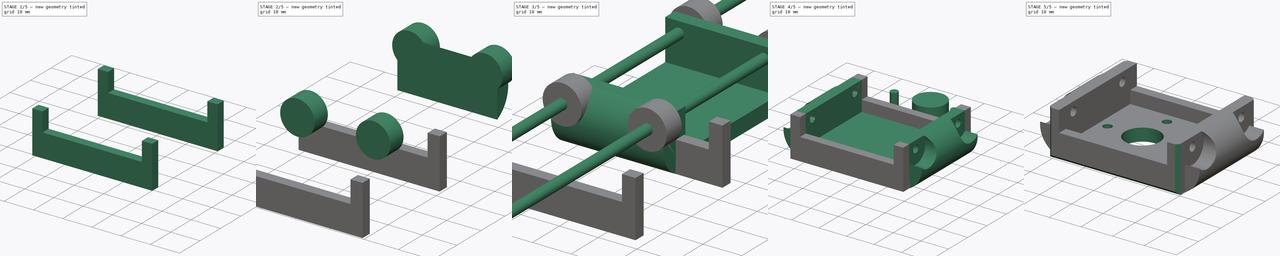
[diagram: build sequence overview — one tinted view per stage of 5, left to right]
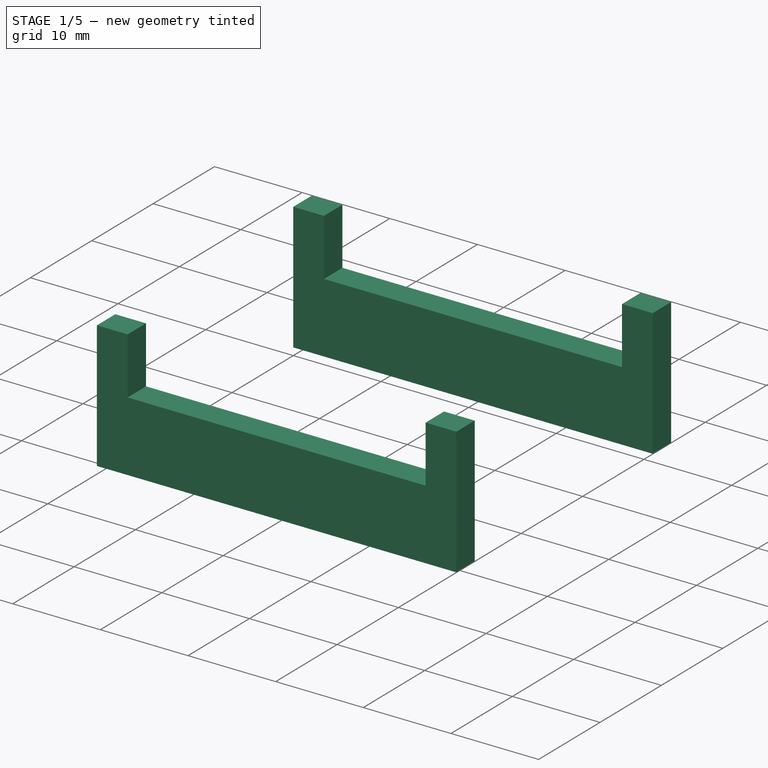
[diagram: stage 1 of 5 — iso view after this stage's code; geometry added in this stage tinted green]
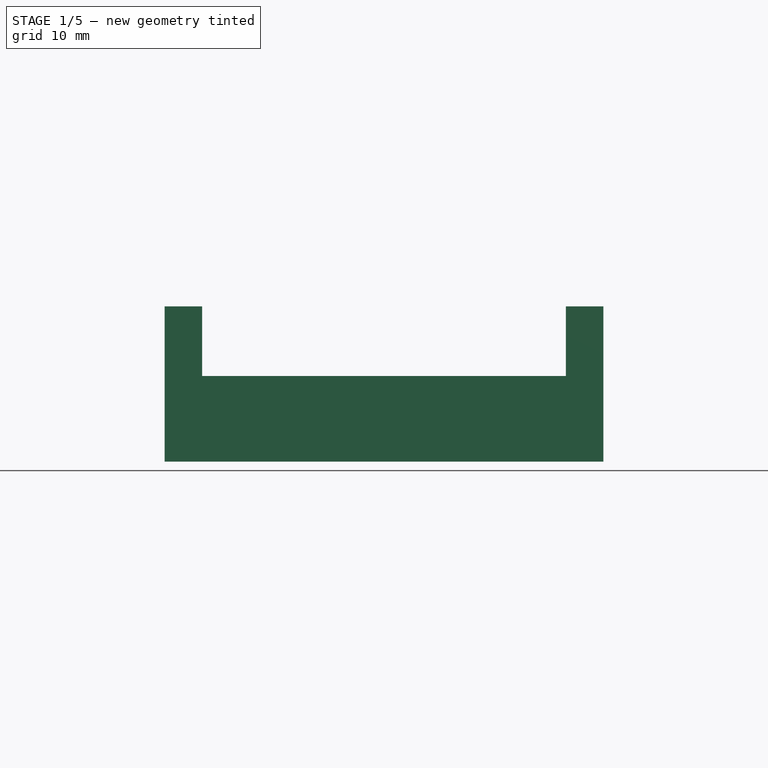
[diagram: stage 1 of 5 — front view after this stage's code; geometry added in this stage tinted green]
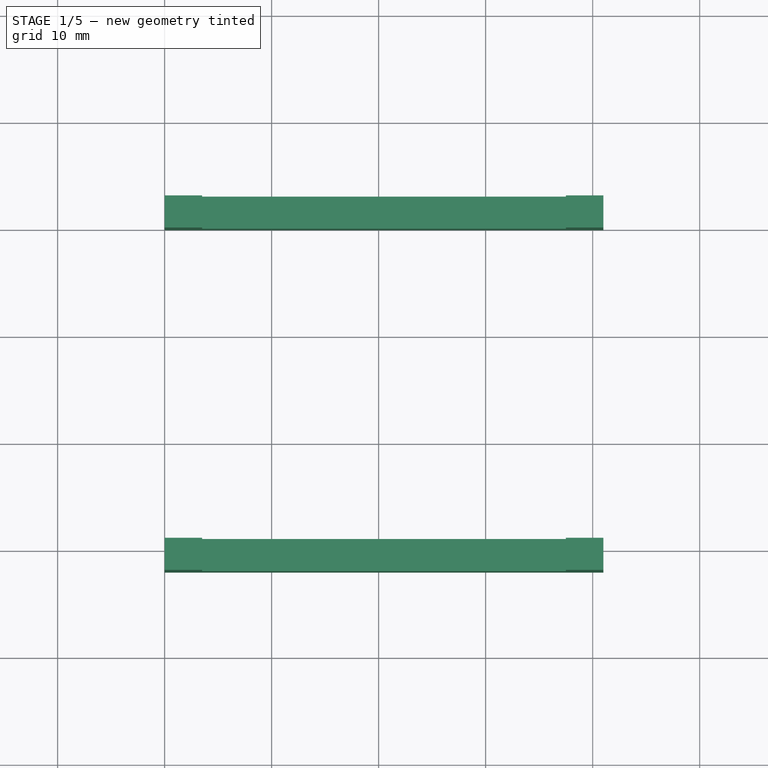
[diagram: stage 1 of 5 — top view after this stage's code; geometry added in this stage tinted green]
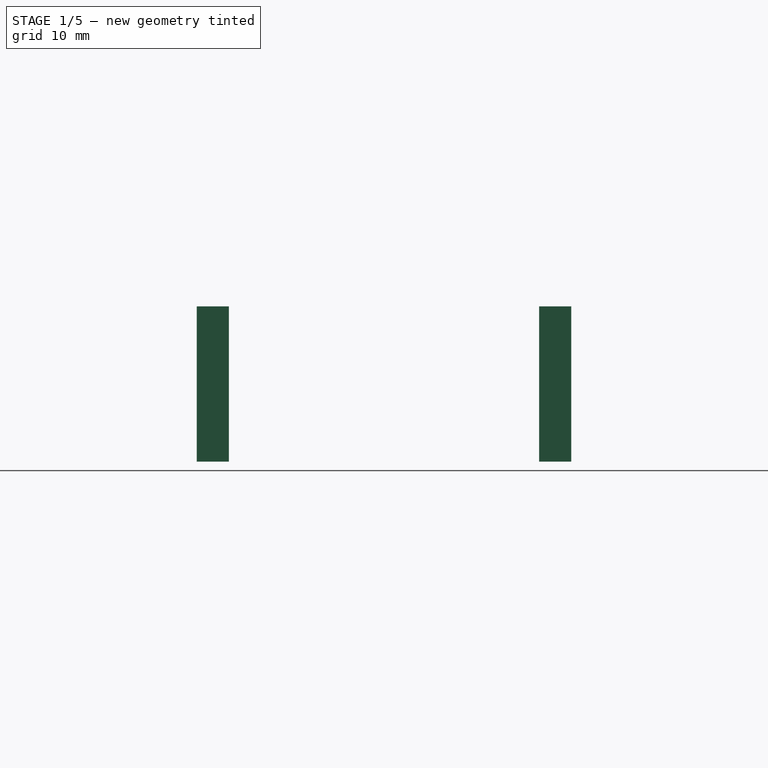
[diagram: stage 1 of 5 — right view after this stage's code; geometry added in this stage tinted green]
FCSTD DOCUMENT  (FreeCAD 0.16R6705 (Git))
Label: top_mx-64_mount
License: CC-BY 3.0
LicenseURL: http://creativecommons.org/licenses/by/3.0/
objects: Part::Box×9, Part::Extrusion×7, Part::MultiFuse×6, Part::Cylinder×5, Sketcher::SketchObject×3, Part::Cut×3, Part::Mirroring×1, Part::Chamfer×1
note: 35 computed .brp shape members not serialized (recipe doc carries the construction recipe); baked Part::Feature solids carry a one-line shape summary decoded from their .brp

FEATURE [Part::Box] Box003  label="Cube"
  Height = 8
  Length = 41
  Width = 3
FEATURE [Part::Box] Box004  label="Cube001"
  Height = 8
  Length = 41
  Placement = pos=(0,-32,0) rot=(0,0,1;0rad)
  Width = 3
FEATURE [Part::Box] Box005  label="Cube002"
  Height = 6.5
  Length = 3.5
  Placement = pos=(0,0,8) rot=(0,0,1;0rad)
  Width = 3
FEATURE [Part::Box] Box006  label="Cube003"
  Height = 6.5
  Length = 3.5
  Placement = pos=(37.5,0,8) rot=(0,0,1;0rad)
  Width = 3
FEATURE [Part::Box] Box007  label="Cube004"
  Height = 6.5
  Length = 3.5
  Placement = pos=(0,-32,8) rot=(0,0,1;0rad)
  Width = 3
FEATURE [Part::Box] Box008  label="Cube005"
  Height = 6.5
  Length = 3.5
  Placement = pos=(37.5,-32,8) rot=(0,0,1;0rad)
  Width = 3
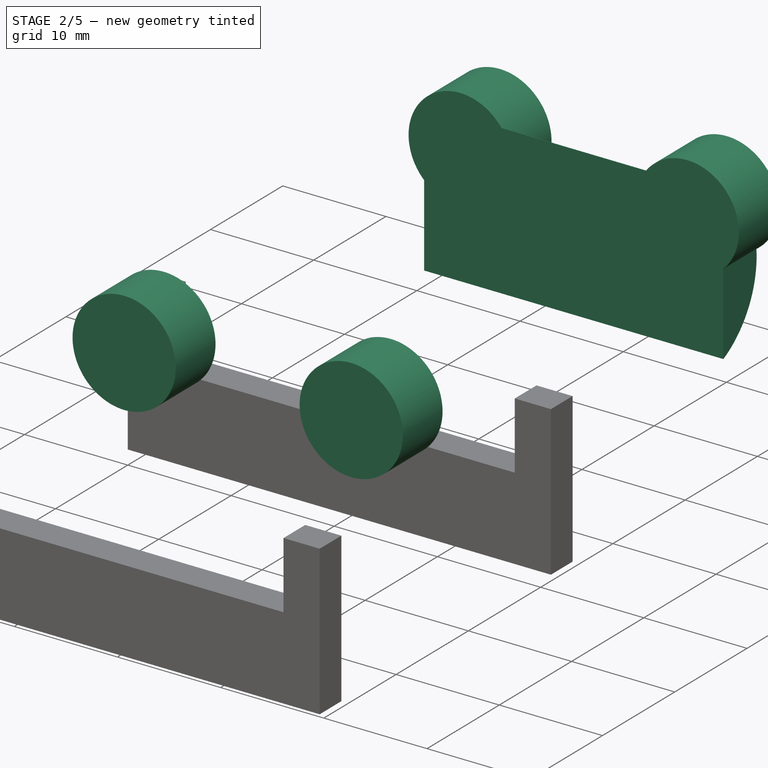
[diagram: stage 2 of 5 — iso view after this stage's code; geometry added in this stage tinted green]
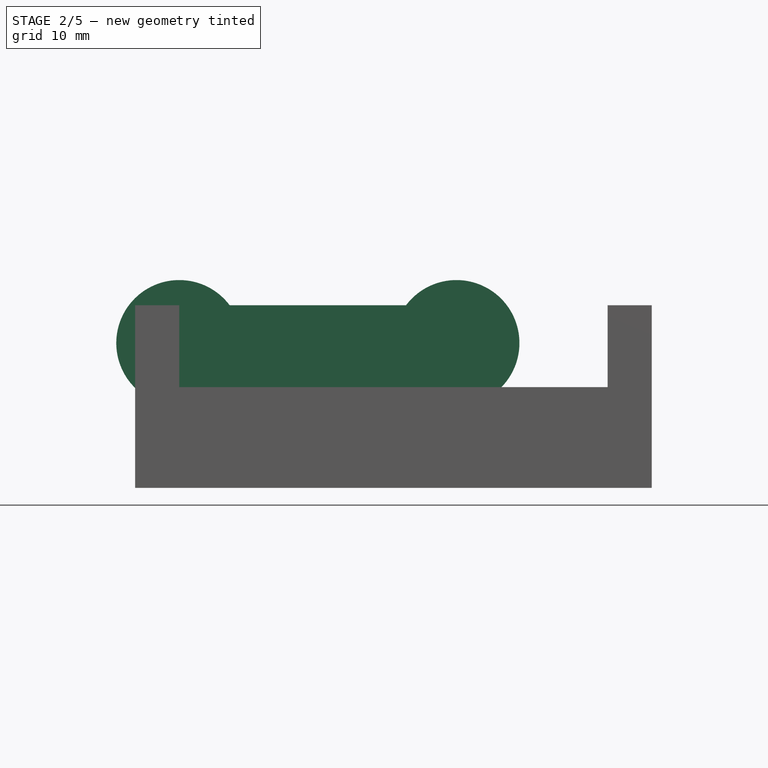
[diagram: stage 2 of 5 — front view after this stage's code; geometry added in this stage tinted green]
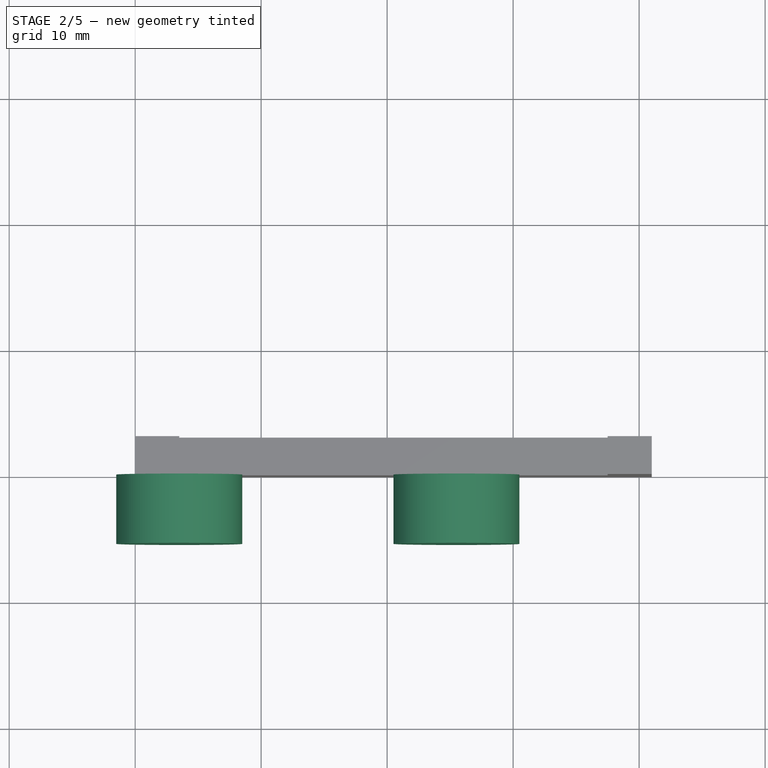
[diagram: stage 2 of 5 — top view after this stage's code; geometry added in this stage tinted green]
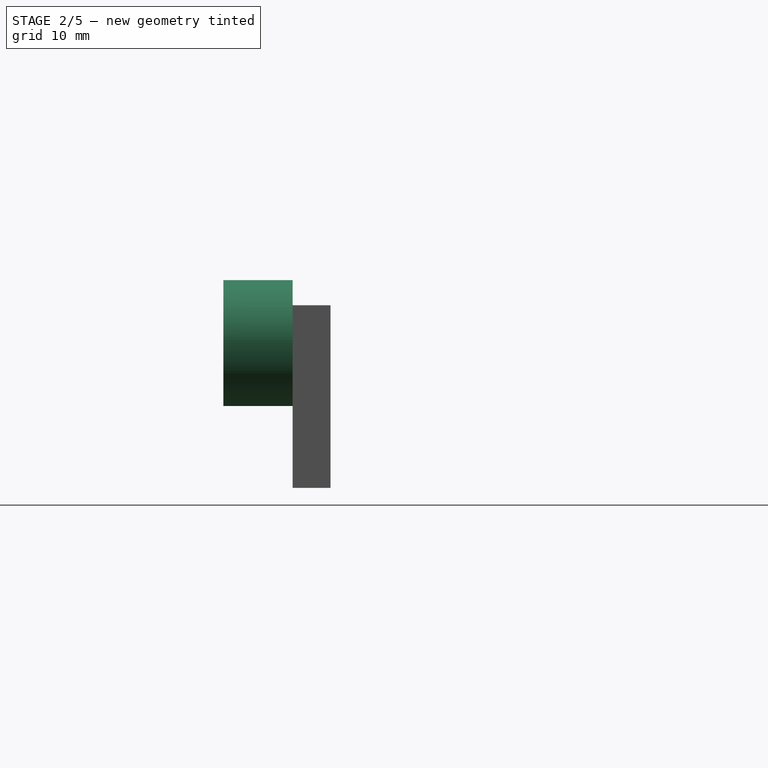
[diagram: stage 2 of 5 — right view after this stage's code; geometry added in this stage tinted green]
FEATURE [Part::Box] Box
  Height = 4
  Length = 29
  Width = 41
FEATURE [Part::Extrusion] Extrude
  Base = -> Sketch
  Dir = (29,0,0)
  Solid = true
FEATURE [Sketcher::SketchObject] Sketch004
  Placement = pos=(0,-5.5,0) rot=(1,0,0;1.5708rad)
  sketch-geometry (1):
    g0: Circle CenterX=3.5 CenterY=11.5 CenterZ=0 NormalX=0 NormalY=0 NormalZ=1 Radius=5
  constraints (3):
    c: Radius(g0) = 5
    c: DistanceX(g0) = 3.5
    c: DistanceY(g0) = 11.5
FEATURE [Part::Extrusion] Extrude003
  Base = -> Sketch004
  Dir = (0,5.5,0)
  Solid = true
FEATURE [Part::Extrusion] Extrude004
  Base = -> Sketch004
  Dir = (0,5.5,0)
  Placement = pos=(22,0,0) rot=(0,0,1;0rad)
  Solid = true
FEATURE [Part::Extrusion] Extrude005
  Base = -> Sketch004
  Dir = (0,5.5,0)
  Placement = pos=(22,46.5,0) rot=(0,0,1;0rad)
  Solid = true
FEATURE [Part::Extrusion] Extrude006
  Base = -> Sketch004
  Dir = (0,5.5,0)
  Placement = pos=(0,46.5,0) rot=(0,0,1;0rad)
  Solid = true
FEATURE [Part::MultiFuse] Fusion002
  Shapes = -> [Extrude006,Extrude005,Extrude004,Extrude003]
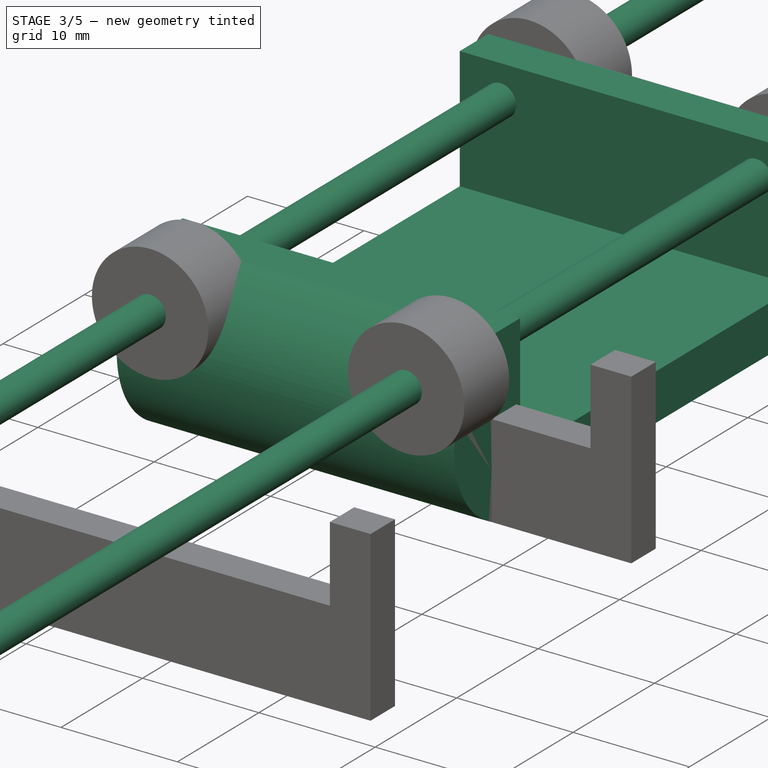
[diagram: stage 3 of 5 — iso view after this stage's code; geometry added in this stage tinted green]
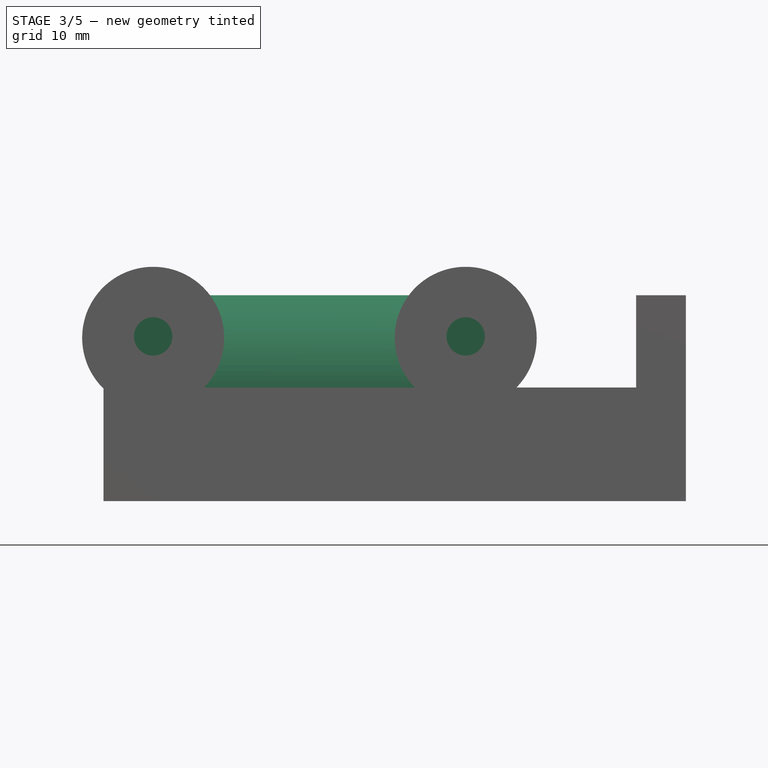
[diagram: stage 3 of 5 — front view after this stage's code; geometry added in this stage tinted green]
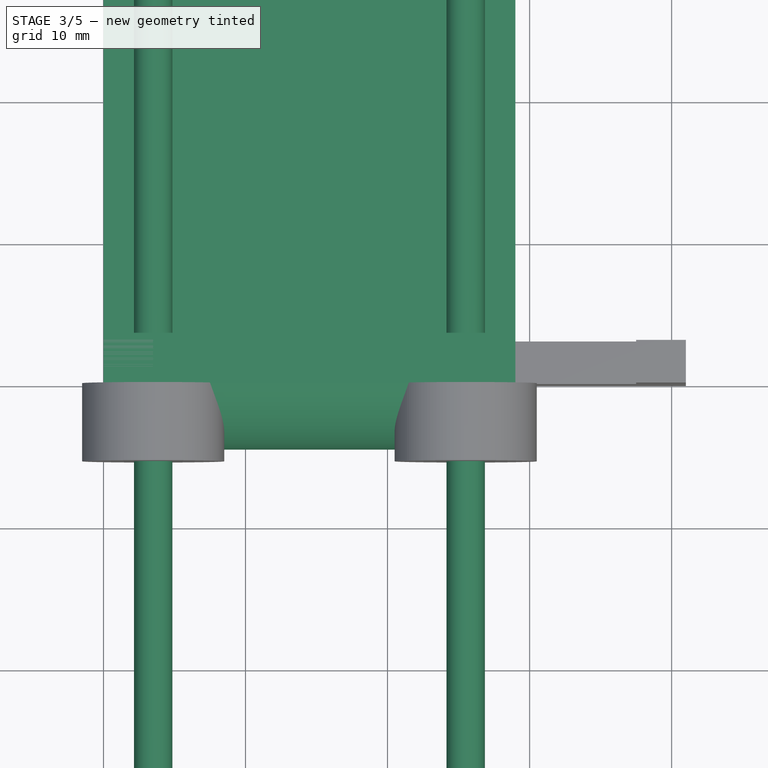
[diagram: stage 3 of 5 — top view after this stage's code; geometry added in this stage tinted green]
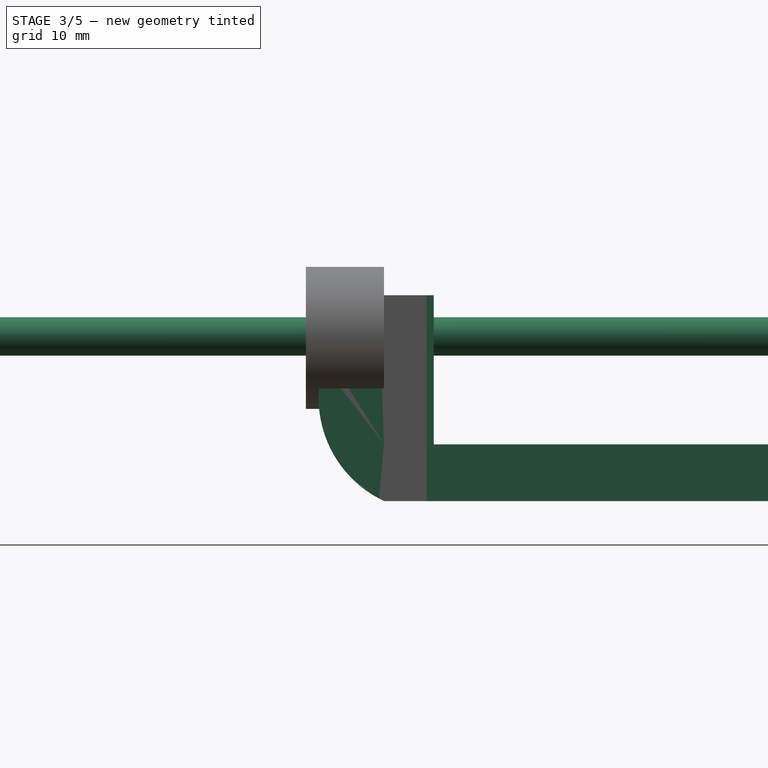
[diagram: stage 3 of 5 — right view after this stage's code; geometry added in this stage tinted green]
FEATURE [Part::Box] Box001
  Height = 14.5
  Length = 29
  Width = 3.5
FEATURE [Part::Box] Box002
  Height = 14.5
  Length = 29
  Placement = pos=(0,37.5,0) rot=(0,0,1;0rad)
  Width = 3.5
FEATURE [Sketcher::SketchObject] Sketch
  Placement = pos=(0,0,0) rot=(0.57735,-0.57735,-0.57735;2.0944rad)
  Support = -> Box [Face1]
  sketch-geometry (2):
    g0: ArcOfCircle CenterX=-37.6014 CenterY=7.25781 CenterZ=0 NormalX=0 NormalY=0 NormalZ=1 Radius=8 StartAngle=2.00957 EndAngle=4.27362
    g1: LineSegment StartX=-41 StartY=0.015628 StartZ=0 EndX=-41 EndY=14.5 EndZ=0
  constraints (7):
    c: Radius(g0) = 8
    c: DistanceX(g0) = -41
    c: DistanceY(g0) = 14.5
    c: DistanceY(g0) = 0.015628
    c: Coincident(g1,g0)
    c: Coincident(g1,g0)
    c: Vertical(g1)
FEATURE [Sketcher::SketchObject] Sketch001
  Placement = pos=(0,-100,0) rot=(1,0,0;1.5708rad)
  sketch-geometry (1):
    g0: Circle CenterX=3 CenterY=6.6 CenterZ=0 NormalX=0 NormalY=0 NormalZ=1 Radius=1.35
  constraints (3):
    c: Radius(g0) = 1.35
    c: DistanceY(g0) = 6.6
    c: DistanceX(g0) = 3
FEATURE [Part::Extrusion] Extrude001
  Base = -> Sketch001
  Dir = (0,200,0)
  Placement = pos=(0.5,0,5) rot=(0,0,1;0rad)
  Solid = true
FEATURE [Part::Extrusion] Extrude002
  Base = -> Sketch001
  Dir = (0,200,0)
  Placement = pos=(22.5,0,5) rot=(0,0,1;0rad)
  Solid = true
FEATURE [Part::Mirroring] Part__Mirroring  label="Extrude (Mirror #1)"
  Base = (0,20.5,0)
  Normal = (0,1,0)
  Source = -> Extrude
FEATURE [Part::MultiFuse] Fusion001  label="Frame"
  Shapes = -> [Box,Box001,Box002,Part__Mirroring,Extrude]
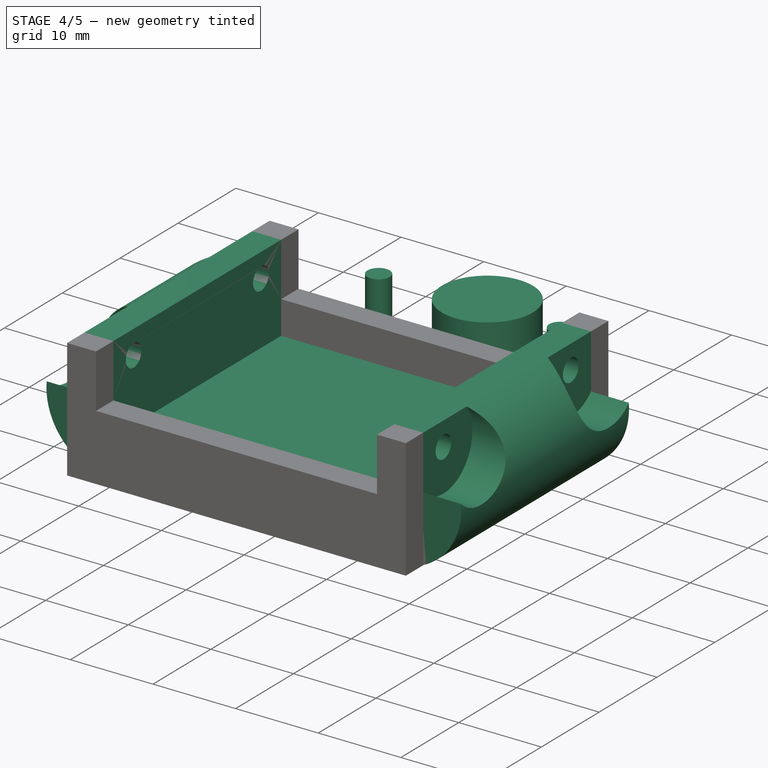
[diagram: stage 4 of 5 — iso view after this stage's code; geometry added in this stage tinted green]
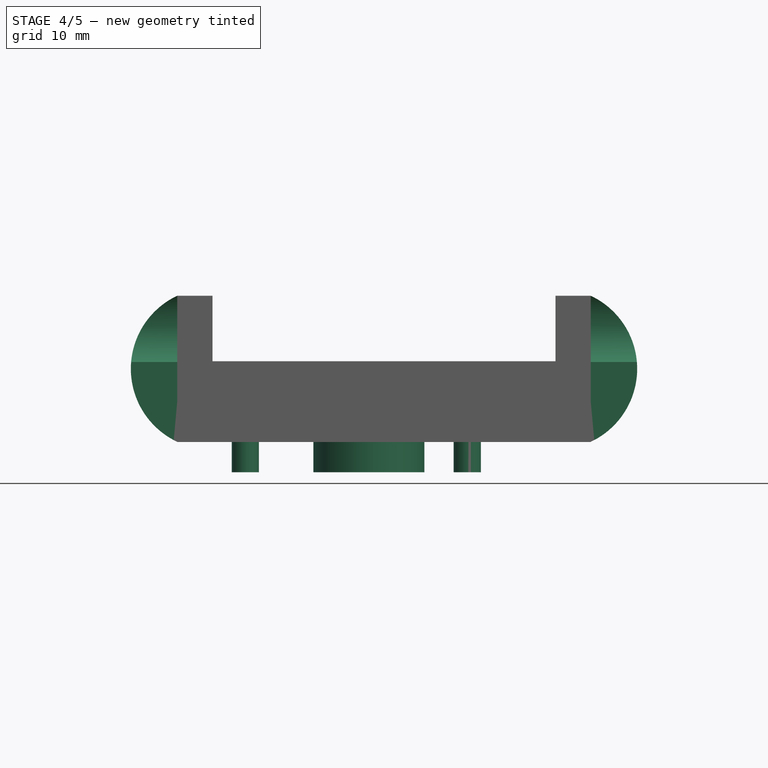
[diagram: stage 4 of 5 — front view after this stage's code; geometry added in this stage tinted green]
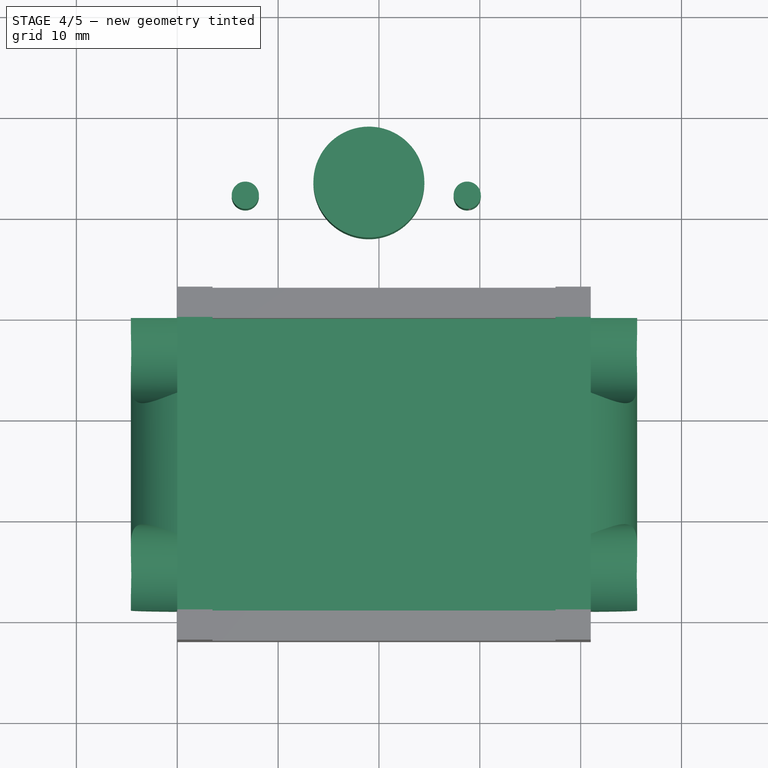
[diagram: stage 4 of 5 — top view after this stage's code; geometry added in this stage tinted green]
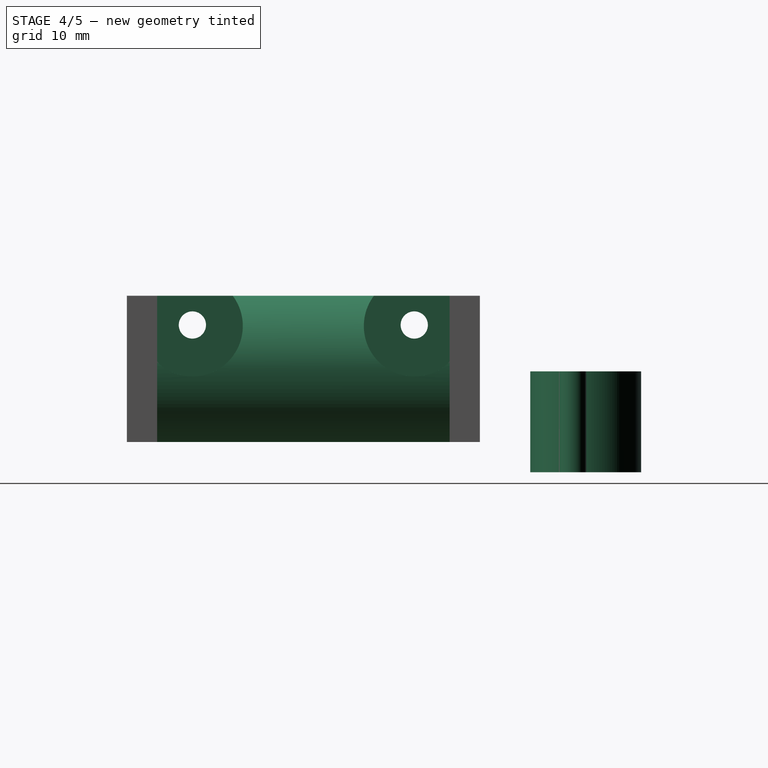
[diagram: stage 4 of 5 — right view after this stage's code; geometry added in this stage tinted green]
FEATURE [Part::MultiFuse] Fusion  label="SideHoles"
  Shapes = -> [Extrude001,Extrude002]
FEATURE [Part::Cut] Cut
  Base = -> Fusion001
  Tool = -> Fusion
FEATURE [Part::Cut] Cut001
  Base = -> Cut
  Placement = pos=(0,0,0) rot=(0,0,-1;1.5708rad)
  Tool = -> Fusion002
FEATURE [Part::Cylinder] Cylinder008
  Angle = 360
  Height = 10
  Placement = pos=(28.75,12.2,-3) rot=(0,0,1;0rad)
  Radius = 1.35
FEATURE [Part::Cylinder] Cylinder009
  Angle = 360
  Height = 10
  Placement = pos=(6.75,12.2,-3) rot=(0,0,1;0rad)
  Radius = 1.35
FEATURE [Part::Cylinder] Cylinder010
  Angle = 360
  Height = 10
  Placement = pos=(19,13.5,-3) rot=(0,0,1;0rad)
  Radius = 5.5
FEATURE [Part::MultiFuse] Fusion007
  Shapes = -> [Box005,Box007,Box008,Box003,Box004,Box006,Cut001]
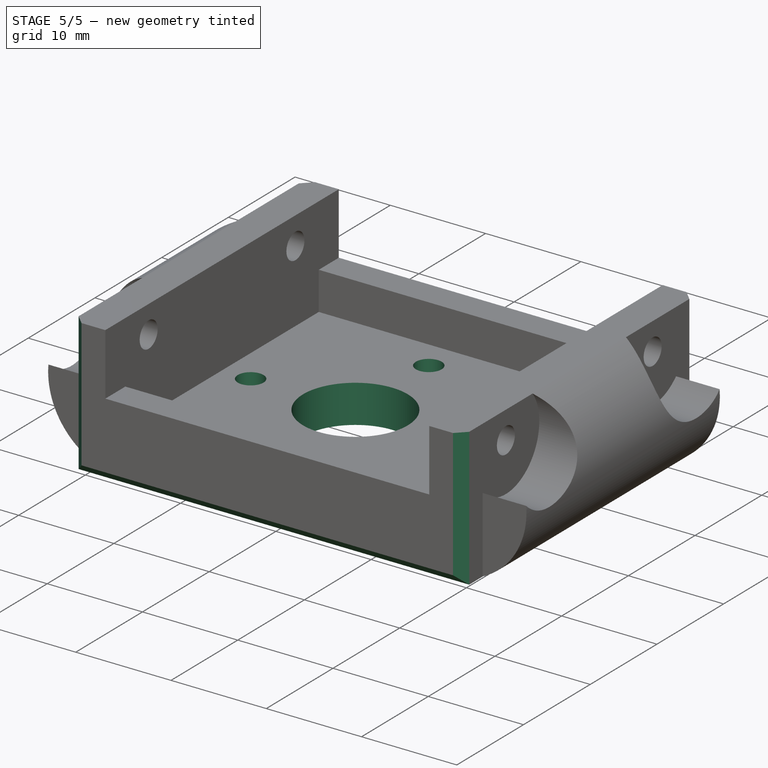
[diagram: stage 5 of 5 — iso view after this stage's code; geometry added in this stage tinted green]
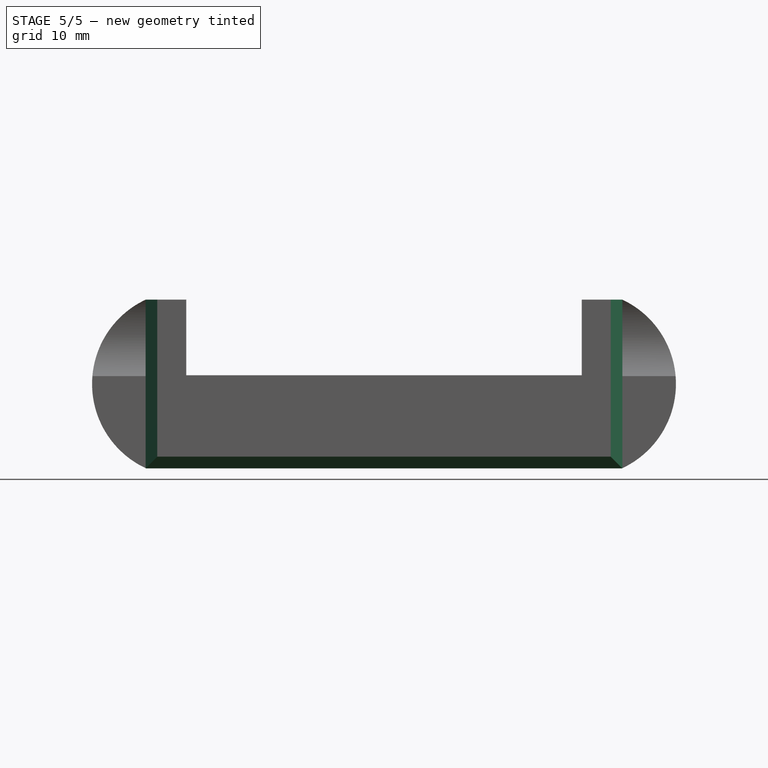
[diagram: stage 5 of 5 — front view after this stage's code; geometry added in this stage tinted green]
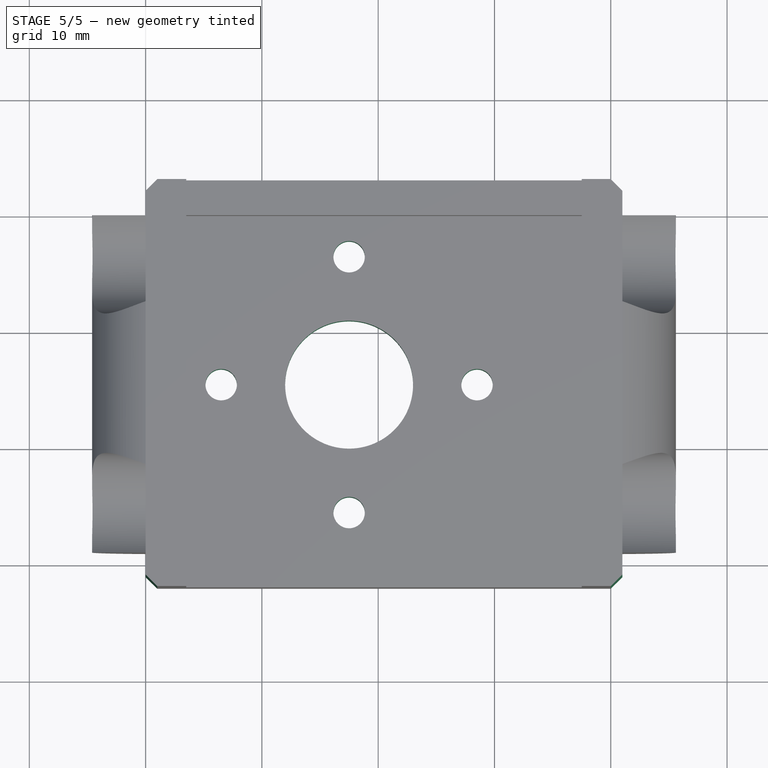
[diagram: stage 5 of 5 — top view after this stage's code; geometry added in this stage tinted green]
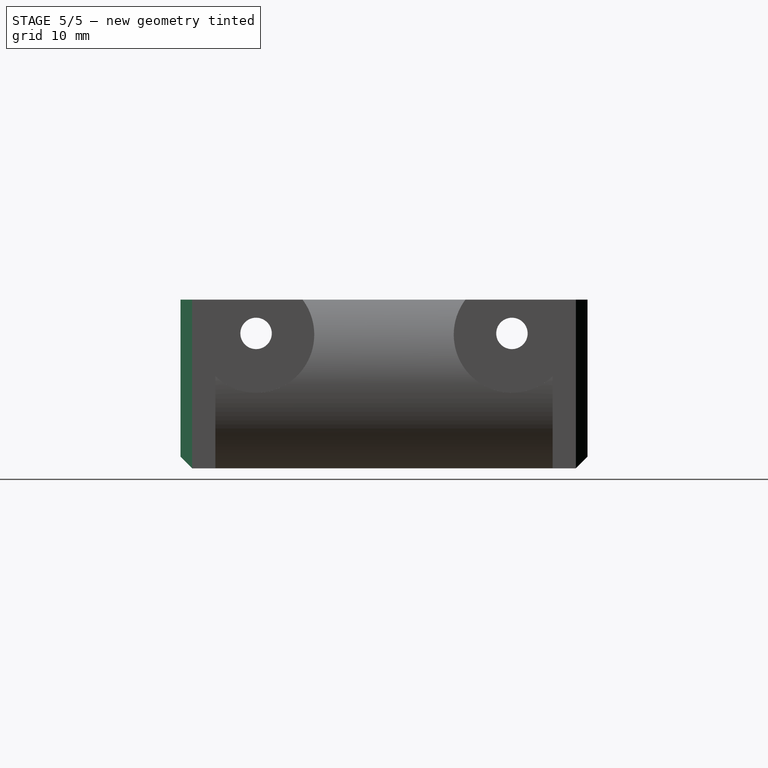
[diagram: stage 5 of 5 — right view after this stage's code; geometry added in this stage tinted green]
FEATURE [Part::Cylinder] Cylinder006
  Angle = 360
  Height = 10
  Placement = pos=(17.75,23.2,-3) rot=(0,0,1;0rad)
  Radius = 1.35
FEATURE [Part::Cylinder] Cylinder007
  Angle = 360
  Height = 10
  Placement = pos=(17.75,1.2,-3) rot=(0,0,1;0rad)
  Radius = 1.35
FEATURE [Part::MultiFuse] Fusion004
  Placement = pos=(1.25,1.3,0) rot=(0,0,1;0rad)
  Shapes = -> [Cylinder009,Cylinder008,Cylinder007,Cylinder006]
FEATURE [Part::MultiFuse] Fusion006
  Placement = pos=(-1.5,-28,1) rot=(0,0,1;0rad)
  Shapes = -> [Fusion004,Cylinder010]
FEATURE [Part::Cut] Cut002
  Base = -> Fusion007
  Tool = -> Fusion006
FEATURE [Part::Chamfer] Chamfer
  Base = -> Cut002
  Edges = 10 edges r=1: [Edge3,Edge5,Edge6,Edge7,Edge31,Edge107,Edge114,Edge118,Edge139,Edge142]
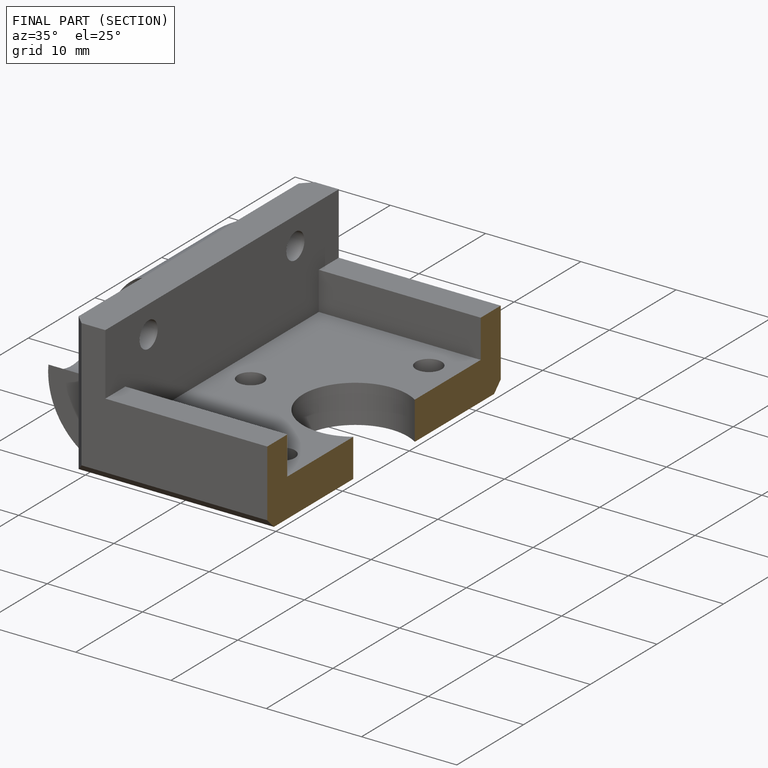
[diagram: finished part — half-section view (interior)]
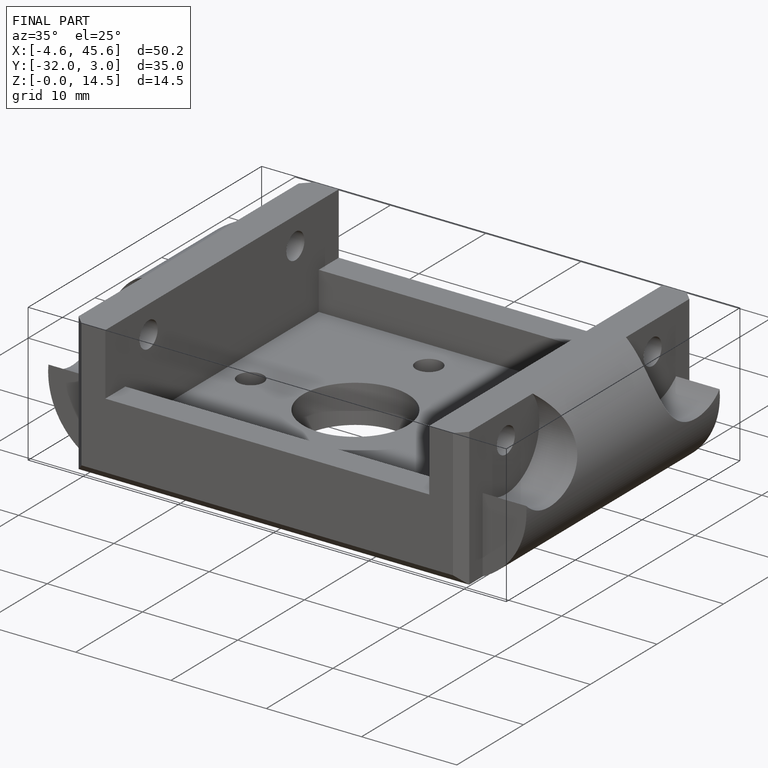
[diagram: finished part — iso view with bounding-box wireframe]
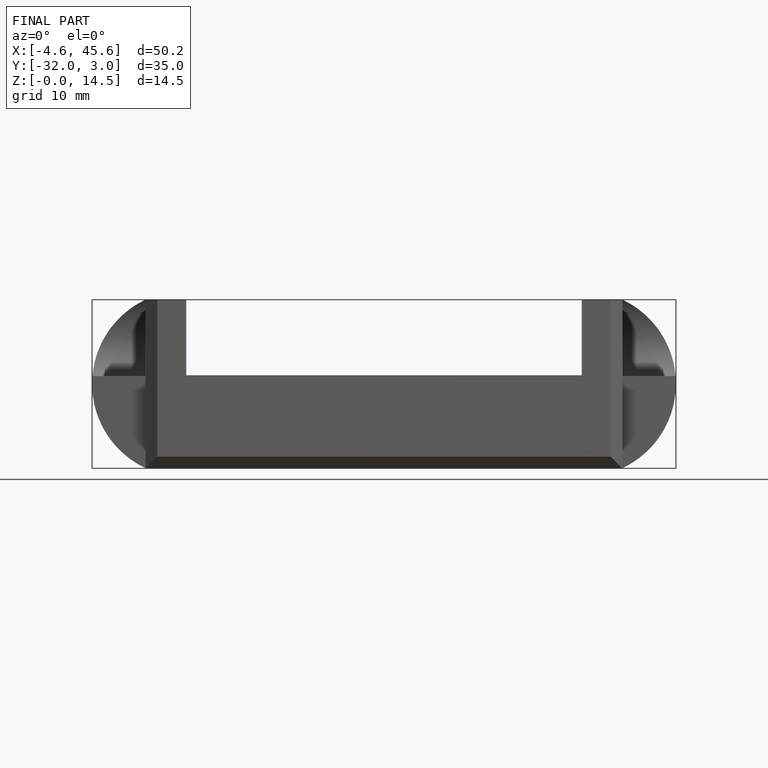
[diagram: finished part — front view with bounding-box wireframe]
